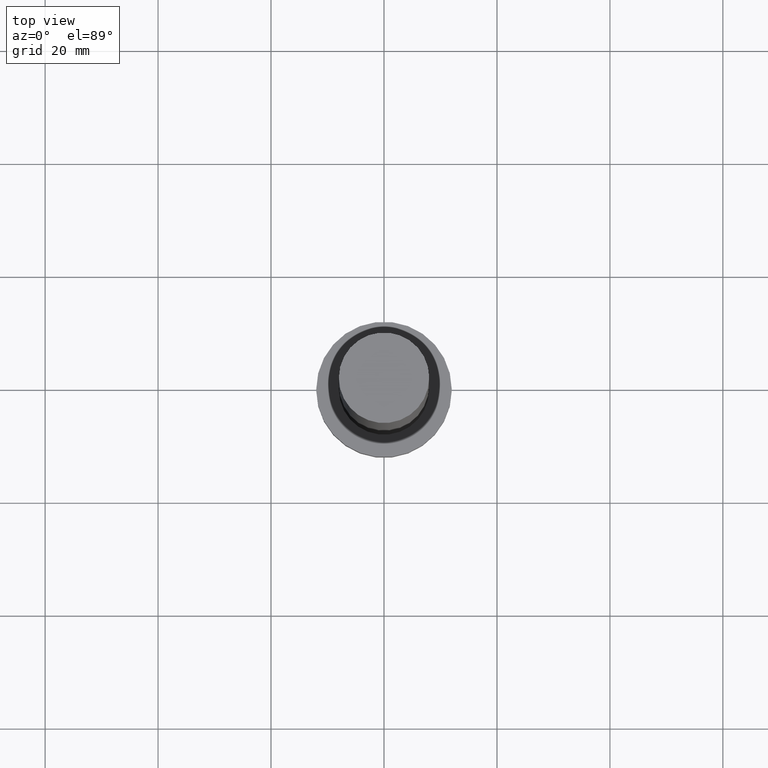
[diagram: clean part render]
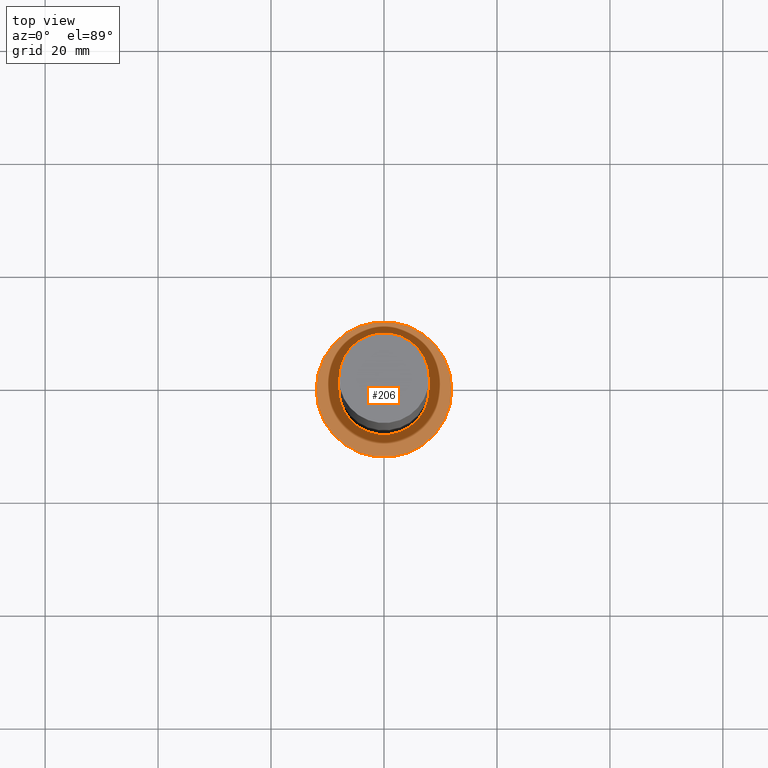
[diagram: same view with one face highlighted and labeled with its STEP entity id]
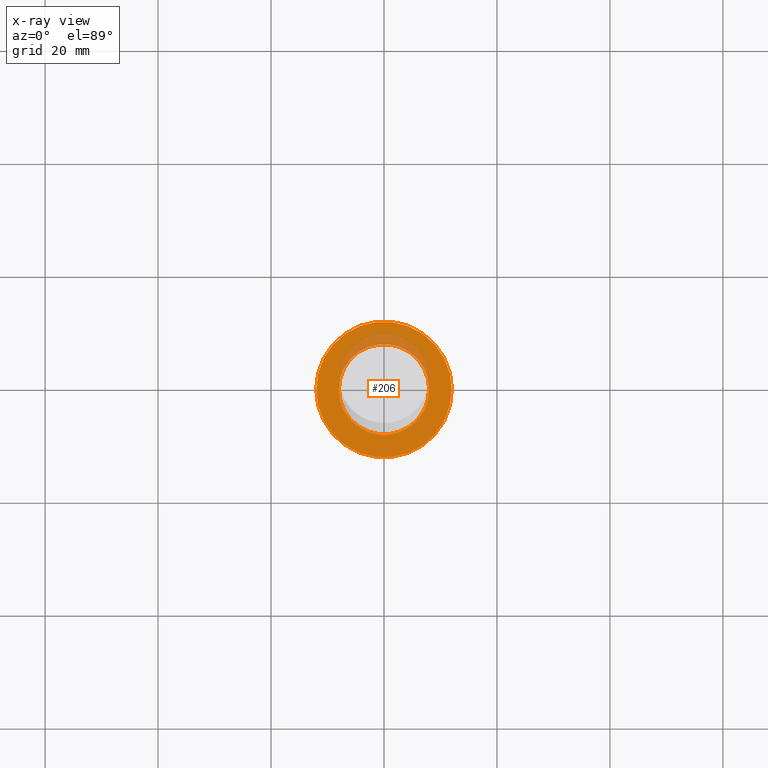
[diagram: x-ray of the same camera — body ghosted, the highlighted face saturated]
A machine part, top view. The second image highlights one B-rep face of the part: STEP entity #206.
The next image is the same camera in x-ray: the body ghosted, the highlighted face saturated — about 13% of this face is hidden behind the body in this view.
In plain terms, the highlighted planar face has unit normal (0, 0, 1).
Its self-contained STEP definition (entity closure, byte-faithful):
#8 = DIRECTION ( 'NONE',  ( 0.000000000000000000, 0.000000000000000000, 1.000000000000000000 ) ) ;
#16 = EDGE_CURVE ( 'NONE', #96, #80, #81, .T. ) ;
#22 = DIRECTION ( 'NONE',  ( 0.000000000000000000, 0.000000000000000000, 1.000000000000000000 ) ) ;
#32 = AXIS2_PLACEMENT_3D ( 'NONE', #133, #94, #129 ) ;
#35 = AXIS2_PLACEMENT_3D ( 'NONE', #228, #226, #168 ) ;
#37 = CARTESIAN_POINT ( 'NONE',  ( -12.00000000000000178, 0.000000000000000000, 7.000000000000000000 ) ) ;
#43 = CIRCLE ( 'NONE', #232, 8.000000000000000000 ) ;
#44 = CARTESIAN_POINT ( 'NONE',  ( 8.000000000000000000, 9.797174393178825657E-16, 7.000000000000000000 ) ) ;
#52 = DIRECTION ( 'NONE',  ( 0.000000000000000000, 0.000000000000000000, 1.000000000000000000 ) ) ;
#72 = PLANE ( 'NONE',  #32 ) ;
#80 = VERTEX_POINT ( 'NONE', #37 ) ;
#81 = CIRCLE ( 'NONE', #102, 12.00000000000000178 ) ;
#94 = DIRECTION ( 'NONE',  ( 0.000000000000000000, 0.000000000000000000, 1.000000000000000000 ) ) ;
#96 = VERTEX_POINT ( 'NONE', #121 ) ;
#99 = CIRCLE ( 'NONE', #175, 8.000000000000000000 ) ;
#102 = AXIS2_PLACEMENT_3D ( 'NONE', #213, #22, #216 ) ;
#108 = CARTESIAN_POINT ( 'NONE',  ( -8.000000000000000000, 0.000000000000000000, 7.000000000000000000 ) ) ;
#121 = CARTESIAN_POINT ( 'NONE',  ( 12.00000000000000178, 1.469576158976824144E-15, 7.000000000000000000 ) ) ;
#127 = DIRECTION ( 'NONE',  ( 1.000000000000000000, 0.000000000000000000, 0.000000000000000000 ) ) ;
#129 = DIRECTION ( 'NONE',  ( 1.000000000000000000, 0.000000000000000000, -0.000000000000000000 ) ) ;
#133 = CARTESIAN_POINT ( 'NONE',  ( 0.000000000000000000, 0.000000000000000000, 7.000000000000000000 ) ) ;
#139 = EDGE_LOOP ( 'NONE', ( #141, #173 ) ) ;
#141 = ORIENTED_EDGE ( 'NONE', *, *, #197, .F. ) ;
#145 = VERTEX_POINT ( 'NONE', #108 ) ;
#154 = ORIENTED_EDGE ( 'NONE', *, *, #191, .T. ) ;
#155 = EDGE_CURVE ( 'NONE', #192, #145, #99, .T. ) ;
#166 = CARTESIAN_POINT ( 'NONE',  ( 0.000000000000000000, 0.000000000000000000, 7.000000000000000000 ) ) ;
#168 = DIRECTION ( 'NONE',  ( 1.000000000000000000, 0.000000000000000000, 0.000000000000000000 ) ) ;
#170 = FACE_OUTER_BOUND ( 'NONE', #199, .T. ) ;
#173 = ORIENTED_EDGE ( 'NONE', *, *, #155, .F. ) ;
#175 = AXIS2_PLACEMENT_3D ( 'NONE', #251, #8, #127 ) ;
#179 = CIRCLE ( 'NONE', #35, 12.00000000000000178 ) ;
#189 = FACE_BOUND ( 'NONE', #139, .T. ) ;
#191 = EDGE_CURVE ( 'NONE', #80, #96, #179, .T. ) ;
#192 = VERTEX_POINT ( 'NONE', #44 ) ;
#194 = ORIENTED_EDGE ( 'NONE', *, *, #16, .T. ) ;
#197 = EDGE_CURVE ( 'NONE', #145, #192, #43, .T. ) ;
#199 = EDGE_LOOP ( 'NONE', ( #154, #194 ) ) ;
#206 = ADVANCED_FACE ( 'NONE', ( #189, #170 ), #72, .T. ) ;
#213 = CARTESIAN_POINT ( 'NONE',  ( 0.000000000000000000, 0.000000000000000000, 7.000000000000000000 ) ) ;
#216 = DIRECTION ( 'NONE',  ( 1.000000000000000000, 0.000000000000000000, 0.000000000000000000 ) ) ;
#224 = DIRECTION ( 'NONE',  ( 1.000000000000000000, 0.000000000000000000, 0.000000000000000000 ) ) ;
#226 = DIRECTION ( 'NONE',  ( 0.000000000000000000, 0.000000000000000000, 1.000000000000000000 ) ) ;
#228 = CARTESIAN_POINT ( 'NONE',  ( 0.000000000000000000, 0.000000000000000000, 7.000000000000000000 ) ) ;
#232 = AXIS2_PLACEMENT_3D ( 'NONE', #166, #52, #224 ) ;
#251 = CARTESIAN_POINT ( 'NONE',  ( 0.000000000000000000, 0.000000000000000000, 7.000000000000000000 ) ) ;